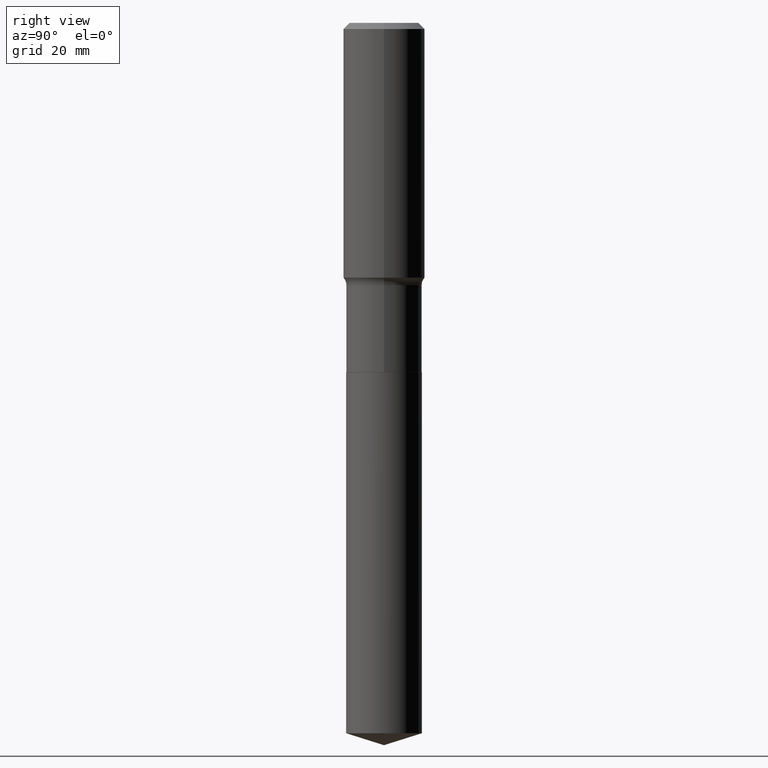
[diagram: clean part render]
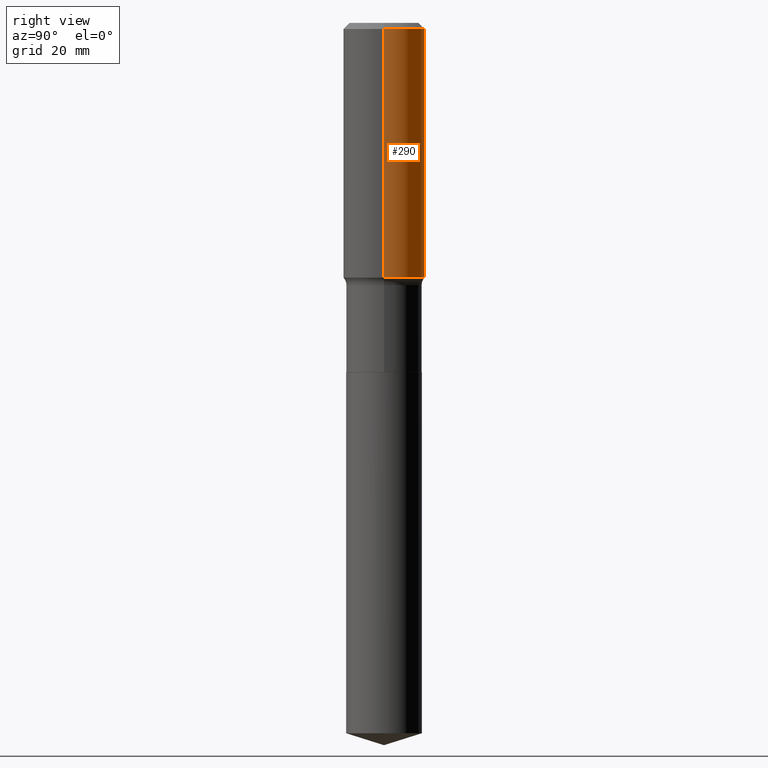
[diagram: same view with one face highlighted and labeled with its STEP entity id]
A machine part, right view. The second image highlights one B-rep face of the part: STEP entity #290.
In plain terms, the highlighted cylindrical surface (partial cylindrical patch) has radius 7.0002 mm, axis along (-0, 0, 1).
Its self-contained STEP definition (entity closure, byte-faithful):
#2 = CYLINDRICAL_SURFACE ( 'NONE', #274, 0.2756000000000001227 ) ;
#7 = CARTESIAN_POINT ( 'NONE',  ( 0.2756000000000001782, -7.936074072254728996E-15, -1.721781952950733219 ) ) ;
#16 = ORIENTED_EDGE ( 'NONE', *, *, #119, .F. ) ;
#31 = DIRECTION ( 'NONE',  ( -2.445468806185136877E-29, 3.491481338843145188E-15, 1.000000000000000000 ) ) ;
#33 = DIRECTION ( 'NONE',  ( -2.445468806185136597E-29, 3.491481338843145583E-15, 1.000000000000000000 ) ) ;
#55 = DIRECTION ( 'NONE',  ( -2.445468806185136597E-29, 3.491481338843145583E-15, 1.000000000000000000 ) ) ;
#59 = AXIS2_PLACEMENT_3D ( 'NONE', #256, #412, #111 ) ;
#82 = EDGE_LOOP ( 'NONE', ( #492, #257, #16, #86 ) ) ;
#86 = ORIENTED_EDGE ( 'NONE', *, *, #131, .F. ) ;
#91 = VECTOR ( 'NONE', #31, 39.37007874015748143 ) ;
#93 = CARTESIAN_POINT ( 'NONE',  ( -0.2756000000000001227, 1.958255779754836984E-15, -1.355658510874252567E-29 ) ) ;
#97 = CARTESIAN_POINT ( 'NONE',  ( 0.2756000000000001227, -1.924504513970336137E-15, 1.343874319409360548E-29 ) ) ;
#111 = DIRECTION ( 'NONE',  ( 1.000000000000000000, -6.982962677686267499E-15, 0.000000000000000000 ) ) ;
#119 = EDGE_CURVE ( 'NONE', #376, #341, #403, .T. ) ;
#131 = EDGE_CURVE ( 'NONE', #461, #376, #204, .T. ) ;
#132 = EDGE_CURVE ( 'NONE', #490, #341, #432, .T. ) ;
#166 = CARTESIAN_POINT ( 'NONE',  ( 1.010956804476942048E-30, -1.443378385477765563E-16, -0.04134000000000026542 ) ) ;
#177 = CIRCLE ( 'NONE', #59, 0.2756000000000002337 ) ;
#189 = VECTOR ( 'NONE', #474, 39.37007874015748143 ) ;
#204 = LINE ( 'NONE', #97, #189 ) ;
#209 = DIRECTION ( 'NONE',  ( 1.000000000000000000, -6.982962677686267499E-15, 0.000000000000000000 ) ) ;
#252 = FACE_OUTER_BOUND ( 'NONE', #82, .T. ) ;
#256 = CARTESIAN_POINT ( 'NONE',  ( 4.210564056993542435E-29, -6.011569558284392464E-15, -1.721781952950733219 ) ) ;
#257 = ORIENTED_EDGE ( 'NONE', *, *, #132, .T. ) ;
#273 = CARTESIAN_POINT ( 'NONE',  ( -0.2756000000000001782, -4.053313778529554297E-15, -1.721781952950733219 ) ) ;
#274 = AXIS2_PLACEMENT_3D ( 'NONE', #296, #33, #415 ) ;
#290 = ADVANCED_FACE ( 'NONE', ( #252 ), #2, .T. ) ;
#291 = EDGE_CURVE ( 'NONE', #461, #490, #177, .T. ) ;
#296 = CARTESIAN_POINT ( 'NONE',  ( 0.000000000000000000, 0.000000000000000000, 0.000000000000000000 ) ) ;
#341 = VERTEX_POINT ( 'NONE', #443 ) ;
#350 = CARTESIAN_POINT ( 'NONE',  ( 0.2756000000000000116, -2.068842352518111732E-15, -0.04134000000000026542 ) ) ;
#376 = VERTEX_POINT ( 'NONE', #350 ) ;
#403 = CIRCLE ( 'NONE', #453, 0.2756000000000000116 ) ;
#412 = DIRECTION ( 'NONE',  ( -2.445468806185136597E-29, 3.491481338843145583E-15, 1.000000000000000000 ) ) ;
#415 = DIRECTION ( 'NONE',  ( 1.000000000000000000, -6.982962677686267499E-15, 4.876176775795935793E-29 ) ) ;
#432 = LINE ( 'NONE', #93, #91 ) ;
#443 = CARTESIAN_POINT ( 'NONE',  ( -0.2756000000000000116, -1.119697918661247440E-15, -0.04134000000000026542 ) ) ;
#453 = AXIS2_PLACEMENT_3D ( 'NONE', #166, #55, #209 ) ;
#461 = VERTEX_POINT ( 'NONE', #7 ) ;
#474 = DIRECTION ( 'NONE',  ( -2.445468806185136877E-29, 3.491481338843145188E-15, 1.000000000000000000 ) ) ;
#490 = VERTEX_POINT ( 'NONE', #273 ) ;
#492 = ORIENTED_EDGE ( 'NONE', *, *, #291, .T. ) ;